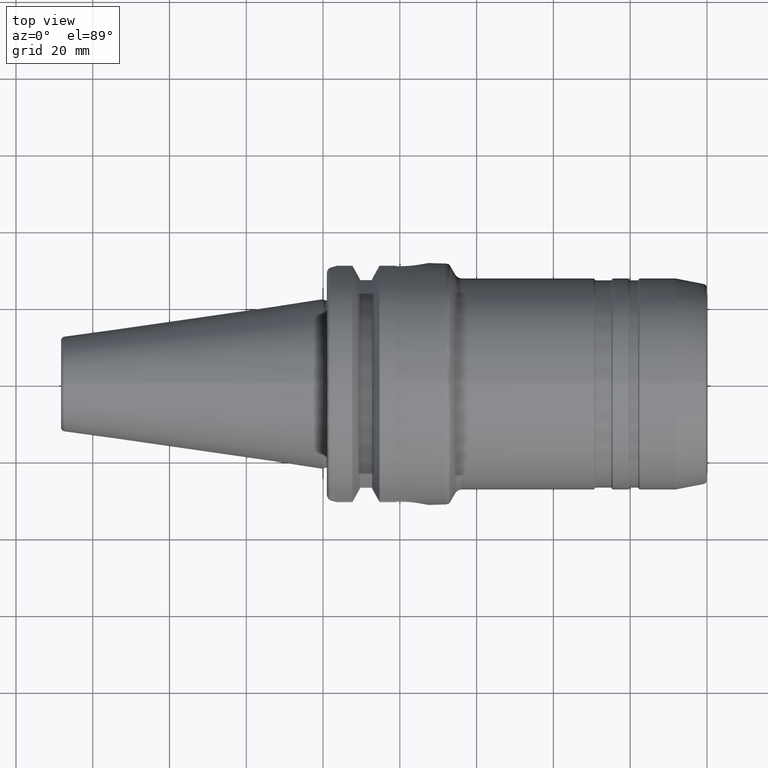
[diagram: clean part render]
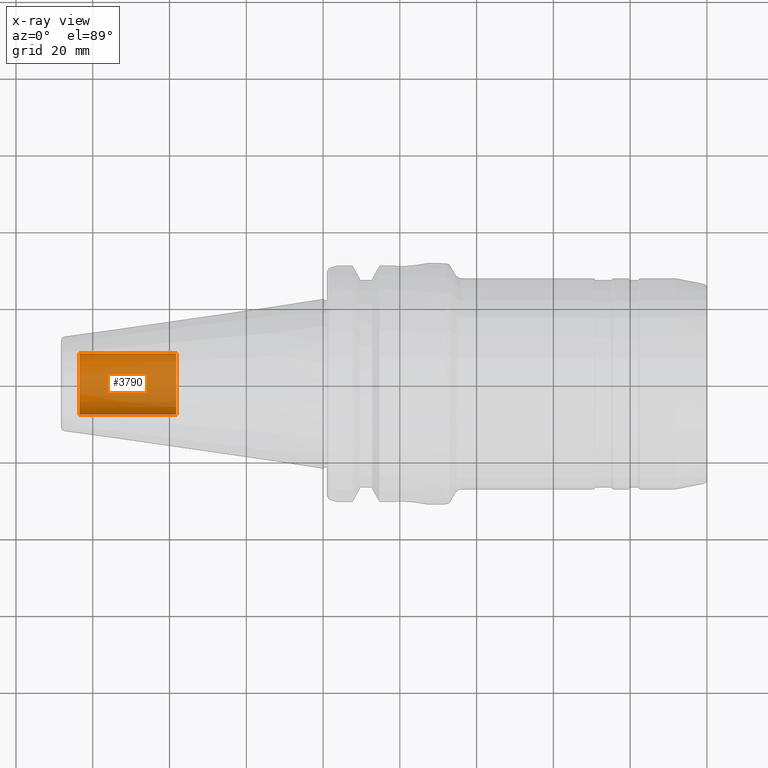
[diagram: x-ray — body ghosted, one internal face saturated and labeled with its STEP entity id]
A machine part, top view, then the same camera in x-ray: the body is ghosted and one INTERNAL B-rep face — a face not visible from any outside direction — is saturated and labeled: STEP entity #3790.
In plain terms, the highlighted cylindrical surface (edge-blend (fillet) strip) has radius 7.9375 mm, axis along (-1, 0, 0).
Its self-contained STEP definition (entity closure, byte-faithful):
#3725=CARTESIAN_POINT('',(-6.345E1,0.E0,0.E0));
#3726=DIRECTION('',(1.E0,0.E0,0.E0));
#3727=DIRECTION('',(0.E0,-1.E0,0.E0));
#3728=AXIS2_PLACEMENT_3D('',#3725,#3726,#3727);
#3735=DIRECTION('',(1.E0,0.E0,0.E0));
#3736=VECTOR('',#3735,2.52E1);
#3737=CARTESIAN_POINT('',(-6.345E1,-7.9375E0,0.E0));
#3738=LINE('',#3737,#3736);
#3739=DIRECTION('',(1.E0,0.E0,0.E0));
#3740=VECTOR('',#3739,2.52E1);
#3741=CARTESIAN_POINT('',(-6.345E1,7.9375E0,0.E0));
#3742=LINE('',#3741,#3740);
#3748=CARTESIAN_POINT('',(-3.825E1,0.E0,0.E0));
#3749=DIRECTION('',(-1.E0,0.E0,0.E0));
#3750=DIRECTION('',(0.E0,1.E0,0.E0));
#3751=AXIS2_PLACEMENT_3D('',#3748,#3749,#3750);
#3763=CARTESIAN_POINT('',(-3.825E1,7.9375E0,0.E0));
#3764=CARTESIAN_POINT('',(-3.825E1,-7.9375E0,0.E0));
#3765=VERTEX_POINT('',#3763);
#3766=VERTEX_POINT('',#3764);
#3767=CARTESIAN_POINT('',(-6.345E1,7.9375E0,0.E0));
#3768=CARTESIAN_POINT('',(-6.345E1,-7.9375E0,0.E0));
#3769=VERTEX_POINT('',#3767);
#3770=VERTEX_POINT('',#3768);
#3775=CARTESIAN_POINT('',(-1.658367445015E1,0.E0,0.E0));
#3776=DIRECTION('',(-1.E0,0.E0,0.E0));
#3777=DIRECTION('',(0.E0,1.E0,0.E0));
#3778=AXIS2_PLACEMENT_3D('',#3775,#3776,#3777);
#3779=CYLINDRICAL_SURFACE('',#3778,7.9375E0);
#3781=ORIENTED_EDGE('',*,*,#3780,.T.);
#3783=ORIENTED_EDGE('',*,*,#3782,.T.);
#3785=ORIENTED_EDGE('',*,*,#3784,.T.);
#3787=ORIENTED_EDGE('',*,*,#3786,.F.);
#3788=EDGE_LOOP('',(#3781,#3783,#3785,#3787));
#3789=FACE_OUTER_BOUND('',#3788,.F.);
#3790=ADVANCED_FACE('',(#3789),#3779,.F.);
#3729=CIRCLE('',#3728,7.9375E0);
#3752=CIRCLE('',#3751,7.9375E0);
#3780=EDGE_CURVE('',#3770,#3769,#3729,.T.);
#3782=EDGE_CURVE('',#3769,#3765,#3742,.T.);
#3784=EDGE_CURVE('',#3765,#3766,#3752,.T.);
#3786=EDGE_CURVE('',#3770,#3766,#3738,.T.);